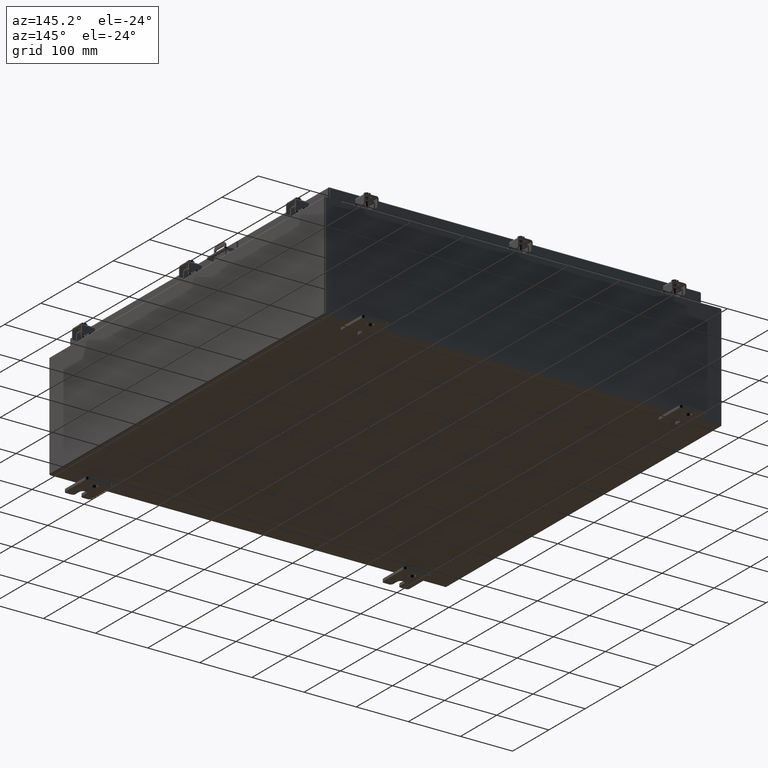
[diagram: clean part render]
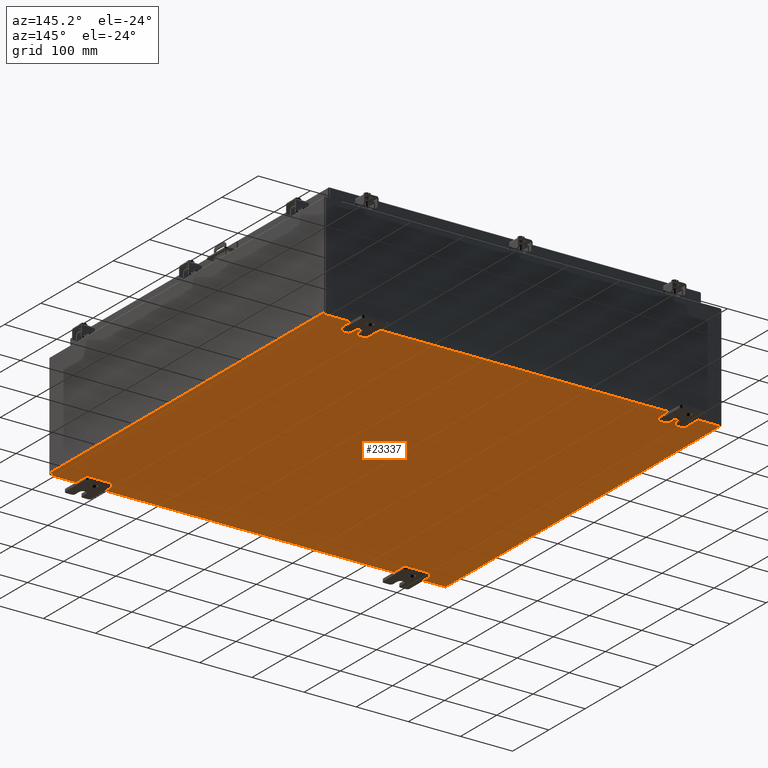
[diagram: same view with one face highlighted and labeled with its STEP entity id]
A machine part, auxiliary view. The second image highlights one B-rep face of the part: STEP entity #23337.
In plain terms, the highlighted planar face has unit normal (0, 0, -1).
Its self-contained STEP definition (entity closure, byte-faithful):
#162 = DIRECTION ( 'NONE',  ( -0.0000000000000000000, -1.000000000000000000, -0.0000000000000000000 ) ) ;
#2775 = PLANE ( 'NONE',  #21454 ) ;
#4745 = DIRECTION ( 'NONE',  ( -0.0000000000000000000, 1.000000000000000000, -0.0000000000000000000 ) ) ;
#4910 = CARTESIAN_POINT ( 'NONE',  ( 14.91230000000000000, 14.92530000000000000, -0.07469999999999994700 ) ) ;
#9084 = VERTEX_POINT ( 'NONE', #38545 ) ;
#10183 = EDGE_CURVE ( 'NONE', #25531, #23751, #23551, .T. ) ;
#10335 = EDGE_LOOP ( 'NONE', ( #28698, #10807, #37316, #31225 ) ) ;
#10807 = ORIENTED_EDGE ( 'NONE', *, *, #23126, .T. ) ;
#11795 = CARTESIAN_POINT ( 'NONE',  ( 0.0000000000000000000, 0.0000000000000000000, -0.07470000000000000300 ) ) ;
#12961 = CARTESIAN_POINT ( 'NONE',  ( -15.00000000000000000, -14.92530000000000000, -0.07470000000000000300 ) ) ;
#13179 = CARTESIAN_POINT ( 'NONE',  ( -15.00000000000000000, 14.92530000000000000, -0.07470000000000000300 ) ) ;
#14784 = DIRECTION ( 'NONE',  ( -1.000000000000000000, 0.0000000000000000000, -0.0000000000000000000 ) ) ;
#14897 = FACE_OUTER_BOUND ( 'NONE', #10335, .T. ) ;
#15634 = VECTOR ( 'NONE', #162, 39.37007874015748100 ) ;
#16186 = DIRECTION ( 'NONE',  ( -1.000000000000000000, -0.0000000000000000000, -0.0000000000000000000 ) ) ;
#18150 = CARTESIAN_POINT ( 'NONE',  ( 14.91230000000000000, 14.92530000000000000, -0.07469999999999994700 ) ) ;
#20445 = VECTOR ( 'NONE', #21951, 39.37007874015748100 ) ;
#21454 = AXIS2_PLACEMENT_3D ( 'NONE', #11795, #32646, #14784 ) ;
#21951 = DIRECTION ( 'NONE',  ( 1.000000000000000000, 0.0000000000000000000, 0.0000000000000000000 ) ) ;
#22825 = CARTESIAN_POINT ( 'NONE',  ( 14.91230000000000000, -14.92530000000000000, -0.07470000000000000300 ) ) ;
#23126 = EDGE_CURVE ( 'NONE', #9084, #38165, #36351, .T. ) ;
#23337 = ADVANCED_FACE ( 'NONE', ( #14897 ), #2775, .T. ) ;
#23551 = LINE ( 'NONE', #18150, #15634 ) ;
#23751 = VERTEX_POINT ( 'NONE', #22825 ) ;
#25531 = VERTEX_POINT ( 'NONE', #4910 ) ;
#25630 = CARTESIAN_POINT ( 'NONE',  ( -14.91230000000000000, -14.92530000000000000, -0.07469999999999994700 ) ) ;
#28433 = VECTOR ( 'NONE', #4745, 39.37007874015748100 ) ;
#28698 = ORIENTED_EDGE ( 'NONE', *, *, #37855, .F. ) ;
#31225 = ORIENTED_EDGE ( 'NONE', *, *, #10183, .T. ) ;
#32646 = DIRECTION ( 'NONE',  ( 0.0000000000000000000, 0.0000000000000000000, -1.000000000000000000 ) ) ;
#33145 = EDGE_CURVE ( 'NONE', #25531, #38165, #35723, .T. ) ;
#34799 = VECTOR ( 'NONE', #16186, 39.37007874015748100 ) ;
#35207 = CARTESIAN_POINT ( 'NONE',  ( -14.91230000000000000, 14.92530000000000000, -0.07470000000000000300 ) ) ;
#35723 = LINE ( 'NONE', #13179, #34799 ) ;
#36351 = LINE ( 'NONE', #25630, #28433 ) ;
#37316 = ORIENTED_EDGE ( 'NONE', *, *, #33145, .F. ) ;
#37855 = EDGE_CURVE ( 'NONE', #9084, #23751, #38119, .T. ) ;
#38119 = LINE ( 'NONE', #12961, #20445 ) ;
#38165 = VERTEX_POINT ( 'NONE', #35207 ) ;
#38545 = CARTESIAN_POINT ( 'NONE',  ( -14.91230000000000000, -14.92530000000000000, -0.07469999999999994700 ) ) ;